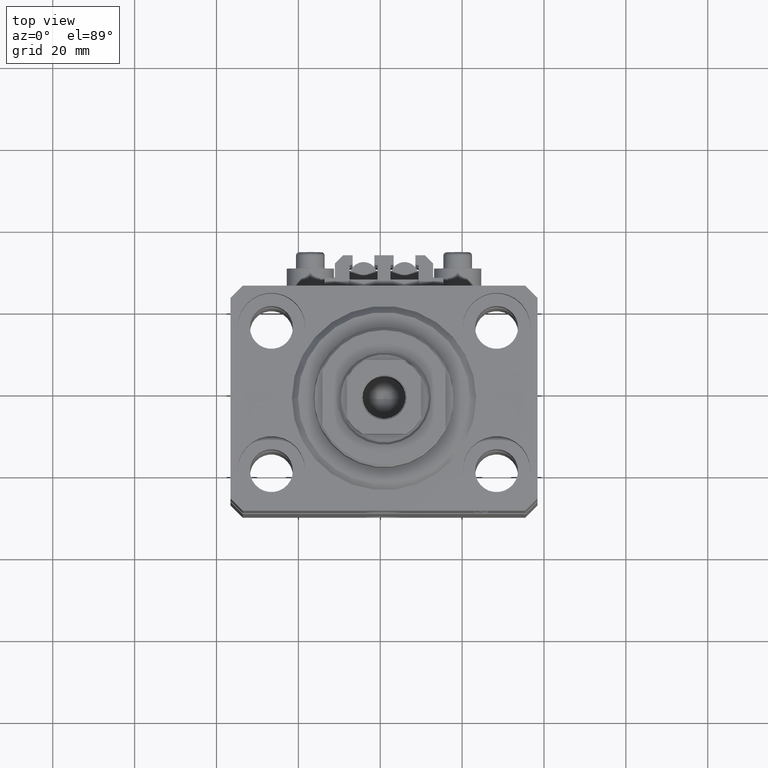
[diagram: clean part render]
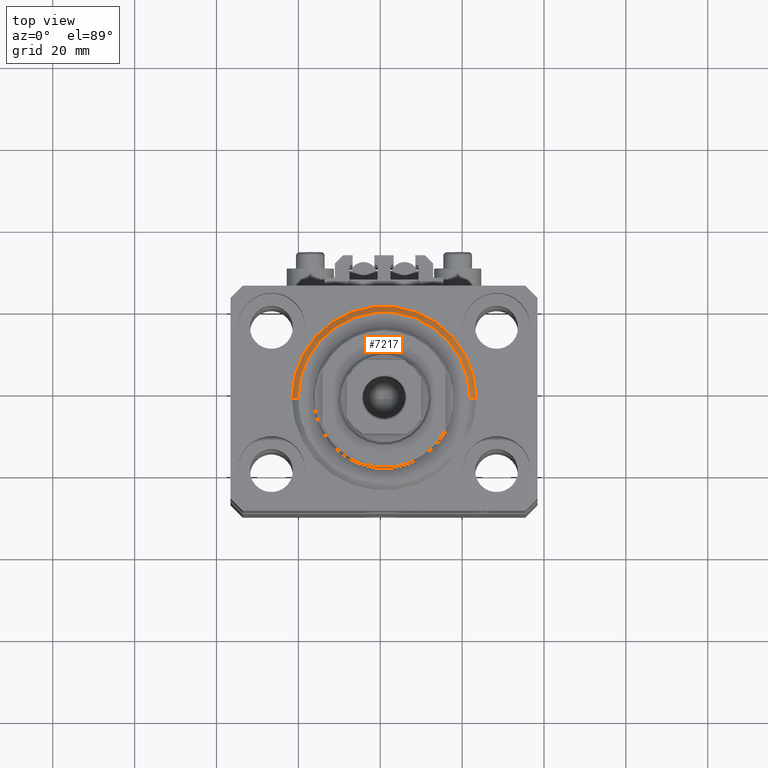
[diagram: same view with one face highlighted and labeled with its STEP entity id]
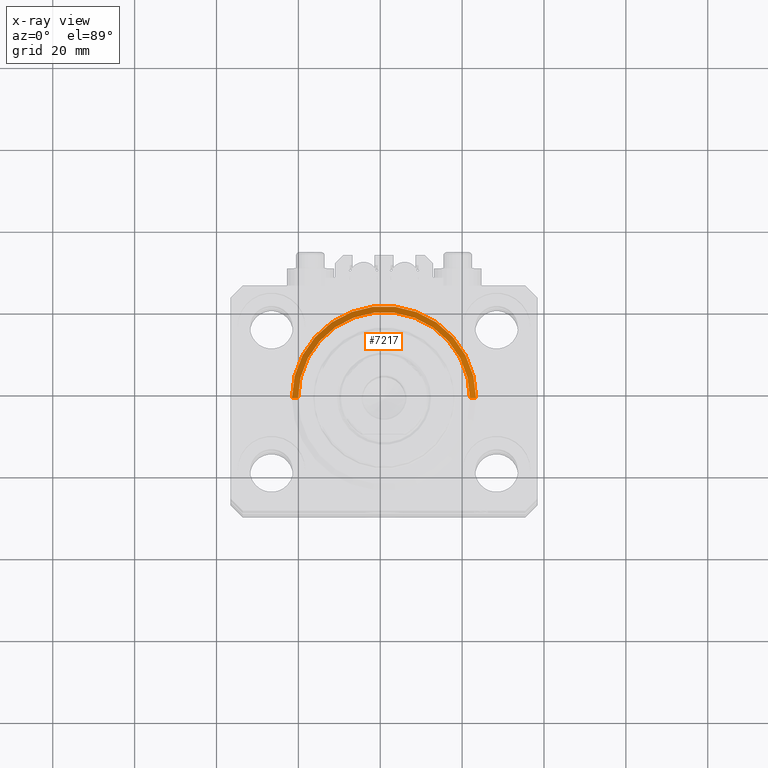
[diagram: x-ray of the same camera — body ghosted, the highlighted face saturated]
A machine part, top view. The second image highlights one B-rep face of the part: STEP entity #7217.
The next image is the same camera in x-ray: the body ghosted, the highlighted face saturated — about 0% of this face is hidden behind the body in this view.
In plain terms, the highlighted conical surface has half-angle 45 deg.
Its self-contained STEP definition (entity closure, byte-faithful):
#1176 = DIRECTION ( 'NONE',  ( 0.7071067811865500152, 0.000000000000000000, 0.7071067811865451302 ) ) ;
#1356 = AXIS2_PLACEMENT_3D ( 'NONE', #30731, #26365, #23429 ) ;
#2716 = VECTOR ( 'NONE', #25258, 1000.000000000000114 ) ;
#2988 = ORIENTED_EDGE ( 'NONE', *, *, #15420, .F. ) ;
#3373 = EDGE_CURVE ( 'NONE', #37127, #4795, #7281, .T. ) ;
#4795 = VERTEX_POINT ( 'NONE', #11954 ) ;
#7217 = ADVANCED_FACE ( 'NONE', ( #32672 ), #25331, .T. ) ;
#7281 = CIRCLE ( 'NONE', #26709, 20.99999999999998934 ) ;
#9277 = CARTESIAN_POINT ( 'NONE',  ( -20.99999999999998934, 2.663606788145492628E-15, 0.000000000000000000 ) ) ;
#9359 = EDGE_CURVE ( 'NONE', #37127, #11100, #21120, .T. ) ;
#10391 = CARTESIAN_POINT ( 'NONE',  ( -22.50000000000000355, 2.755455298081545172E-15, 1.500000000000001332 ) ) ;
#11100 = VERTEX_POINT ( 'NONE', #17718 ) ;
#11306 = AXIS2_PLACEMENT_3D ( 'NONE', #44373, #29023, #25379 ) ;
#11954 = CARTESIAN_POINT ( 'NONE',  ( 20.99999999999998934, 0.000000000000000000, 0.000000000000000000 ) ) ;
#12136 = CARTESIAN_POINT ( 'NONE',  ( 22.50000000000000355, 0.000000000000000000, 1.500000000000001332 ) ) ;
#12768 = ORIENTED_EDGE ( 'NONE', *, *, #9359, .T. ) ;
#15420 = EDGE_CURVE ( 'NONE', #28759, #11100, #39466, .T. ) ;
#17236 = EDGE_CURVE ( 'NONE', #4795, #28759, #33347, .T. ) ;
#17718 = CARTESIAN_POINT ( 'NONE',  ( -22.50000000000000355, 0.000000000000000000, 1.500000000000001332 ) ) ;
#21120 = LINE ( 'NONE', #10391, #2716 ) ;
#21780 = EDGE_LOOP ( 'NONE', ( #24264, #12768, #2988, #28513 ) ) ;
#23429 = DIRECTION ( 'NONE',  ( 1.000000000000000000, 0.000000000000000000, 0.000000000000000000 ) ) ;
#24264 = ORIENTED_EDGE ( 'NONE', *, *, #3373, .F. ) ;
#25258 = DIRECTION ( 'NONE',  ( -0.7071067811865500152, 8.659560562354963673E-17, 0.7071067811865451302 ) ) ;
#25331 = CONICAL_SURFACE ( 'NONE', #11306, 22.50000000000000355, 0.7853981633974517207 ) ;
#25379 = DIRECTION ( 'NONE',  ( 1.000000000000000000, 0.000000000000000000, 0.000000000000000000 ) ) ;
#26365 = DIRECTION ( 'NONE',  ( -0.000000000000000000, -0.000000000000000000, 1.000000000000000000 ) ) ;
#26709 = AXIS2_PLACEMENT_3D ( 'NONE', #35979, #35736, #32555 ) ;
#28513 = ORIENTED_EDGE ( 'NONE', *, *, #17236, .F. ) ;
#28759 = VERTEX_POINT ( 'NONE', #42130 ) ;
#29023 = DIRECTION ( 'NONE',  ( -0.000000000000000000, -0.000000000000000000, 1.000000000000000000 ) ) ;
#30731 = CARTESIAN_POINT ( 'NONE',  ( 0.000000000000000000, 0.000000000000000000, 1.500000000000001332 ) ) ;
#31734 = VECTOR ( 'NONE', #1176, 1000.000000000000114 ) ;
#32555 = DIRECTION ( 'NONE',  ( 1.000000000000000000, 0.000000000000000000, 0.000000000000000000 ) ) ;
#32672 = FACE_OUTER_BOUND ( 'NONE', #21780, .T. ) ;
#33347 = LINE ( 'NONE', #12136, #31734 ) ;
#35736 = DIRECTION ( 'NONE',  ( -0.000000000000000000, -0.000000000000000000, -1.000000000000000000 ) ) ;
#35979 = CARTESIAN_POINT ( 'NONE',  ( 0.000000000000000000, 0.000000000000000000, 0.000000000000000000 ) ) ;
#37127 = VERTEX_POINT ( 'NONE', #9277 ) ;
#39466 = CIRCLE ( 'NONE', #1356, 22.50000000000000355 ) ;
#42130 = CARTESIAN_POINT ( 'NONE',  ( 22.50000000000000355, 2.755455298081545172E-15, 1.500000000000001332 ) ) ;
#44373 = CARTESIAN_POINT ( 'NONE',  ( 0.000000000000000000, 0.000000000000000000, 1.500000000000001332 ) ) ;